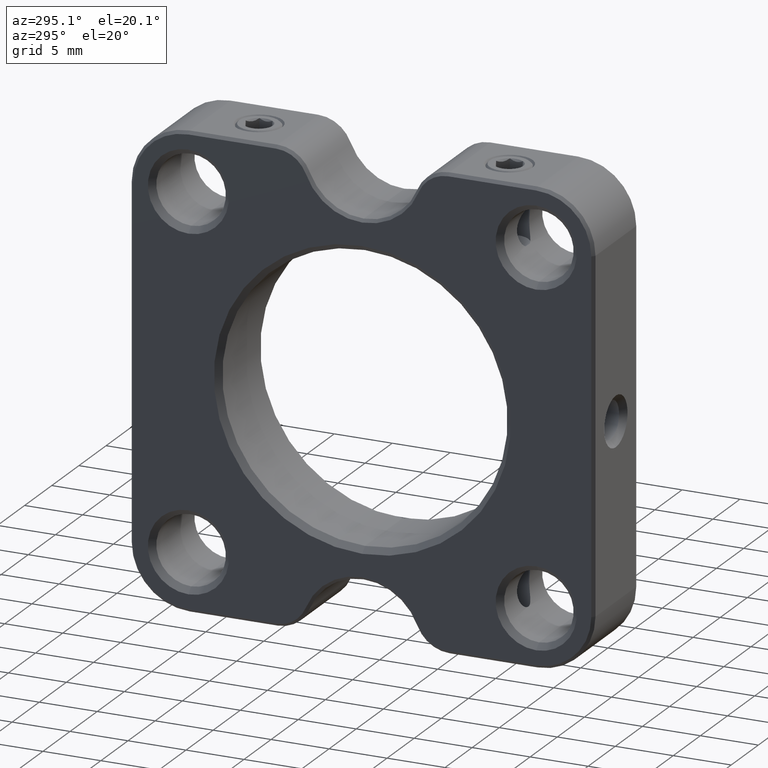
[diagram: clean part render]
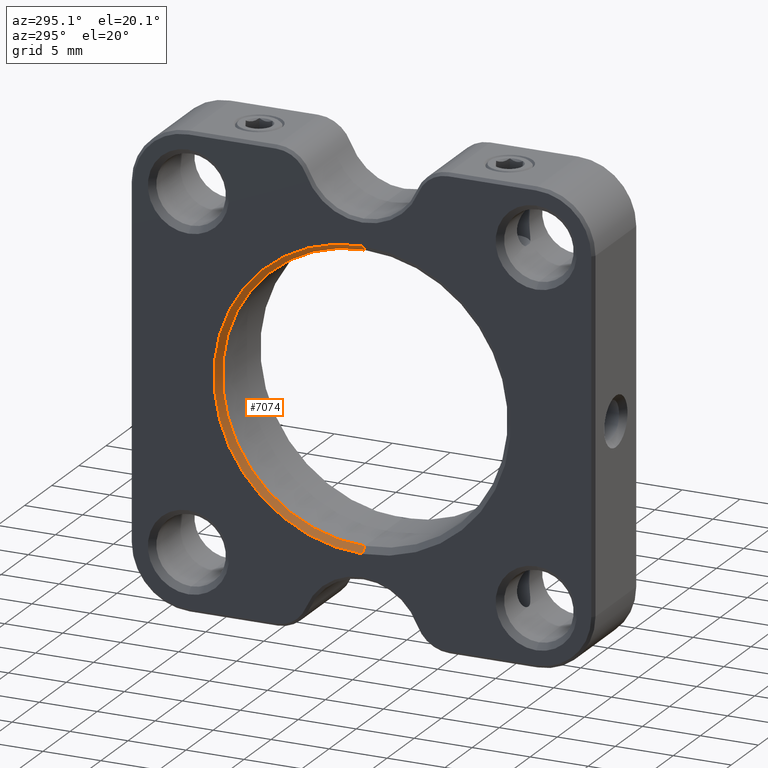
[diagram: same view with one face highlighted and labeled with its STEP entity id]
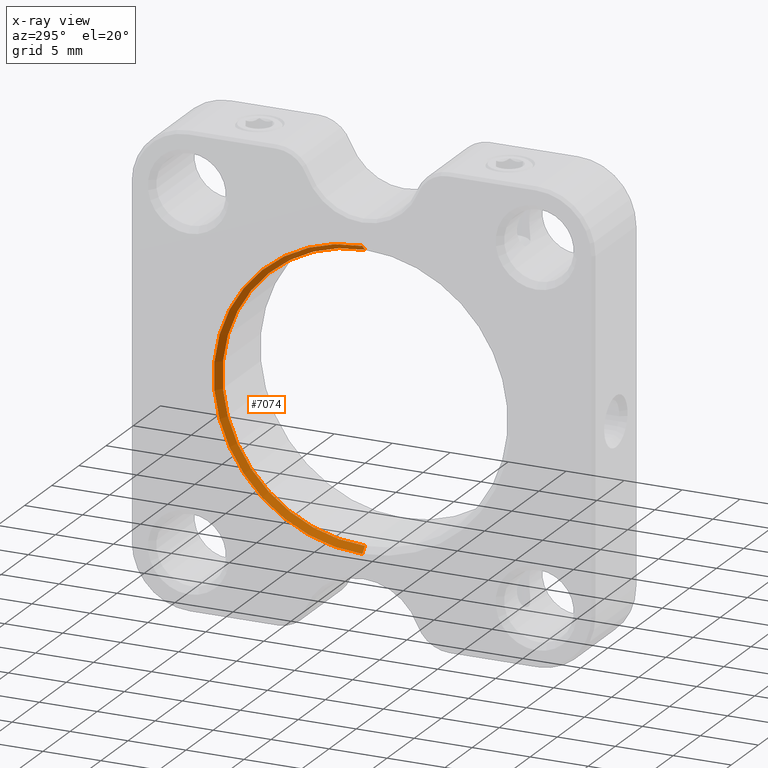
[diagram: x-ray of the same camera — body ghosted, the highlighted face saturated]
A machine part, auxiliary view. The second image highlights one B-rep face of the part: STEP entity #7074.
The next image is the same camera in x-ray: the body ghosted, the highlighted face saturated — about 0% of this face is hidden behind the body in this view.
In plain terms, the highlighted conical surface has half-angle 45 deg.
Its self-contained STEP definition (entity closure, byte-faithful):
#504 = ORIENTED_EDGE ( 'NONE', *, *, #5115, .F. ) ;
#619 = EDGE_LOOP ( 'NONE', ( #504, #4240, #5287, #6853 ) ) ;
#815 = CARTESIAN_POINT ( 'NONE',  ( -18.20960063692995234, 2.109301223409109749, 52.30500000000002103 ) ) ;
#924 = CARTESIAN_POINT ( 'NONE',  ( -18.20960063692995234, 2.109301223409109749, 40.00000000000001421 ) ) ;
#1064 = CARTESIAN_POINT ( 'NONE',  ( -18.70960063692994879, 2.109301223409109749, 52.80500000000002103 ) ) ;
#1221 = DIRECTION ( 'NONE',  ( 0.000000000000000000, 0.000000000000000000, -1.000000000000000000 ) ) ;
#1455 = FACE_OUTER_BOUND ( 'NONE', #619, .T. ) ;
#1683 = CIRCLE ( 'NONE', #4005, 12.30499999999999972 ) ;
#1883 = DIRECTION ( 'NONE',  ( -1.000000000000000000, -0.000000000000000000, -0.000000000000000000 ) ) ;
#2069 = DIRECTION ( 'NONE',  ( -1.000000000000000000, -0.000000000000000000, -0.000000000000000000 ) ) ;
#2199 = CARTESIAN_POINT ( 'NONE',  ( -18.70960063692994879, 2.109301223409111525, 27.19500000000001450 ) ) ;
#2202 = VERTEX_POINT ( 'NONE', #6287 ) ;
#2230 = CIRCLE ( 'NONE', #7140, 12.80499999999999972 ) ;
#3018 = CARTESIAN_POINT ( 'NONE',  ( -18.70960063692994879, 2.109301223409109749, 40.00000000000001421 ) ) ;
#3182 = VERTEX_POINT ( 'NONE', #2199 ) ;
#3286 = CARTESIAN_POINT ( 'NONE',  ( -18.70960063692994879, 2.109301223409111525, 27.19500000000001450 ) ) ;
#3343 = EDGE_CURVE ( 'NONE', #7595, #3733, #1683, .T. ) ;
#3594 = LINE ( 'NONE', #1064, #7245 ) ;
#3631 = DIRECTION ( 'NONE',  ( 0.000000000000000000, 0.000000000000000000, 1.000000000000000000 ) ) ;
#3733 = VERTEX_POINT ( 'NONE', #4983 ) ;
#3950 = EDGE_CURVE ( 'NONE', #7595, #2202, #3594, .T. ) ;
#4005 = AXIS2_PLACEMENT_3D ( 'NONE', #924, #2069, #7600 ) ;
#4240 = ORIENTED_EDGE ( 'NONE', *, *, #3343, .F. ) ;
#4438 = DIRECTION ( 'NONE',  ( -0.7071067811865463515, 8.659560562354950115E-17, -0.7071067811865487940 ) ) ;
#4983 = CARTESIAN_POINT ( 'NONE',  ( -18.20960063692995234, 2.109301223409111525, 27.69500000000001450 ) ) ;
#5115 = EDGE_CURVE ( 'NONE', #3733, #3182, #6136, .T. ) ;
#5287 = ORIENTED_EDGE ( 'NONE', *, *, #3950, .T. ) ;
#5367 = CONICAL_SURFACE ( 'NONE', #6994, 12.80500000000000327, 0.7853981633974500554 ) ;
#5878 = EDGE_CURVE ( 'NONE', #3182, #2202, #2230, .T. ) ;
#5885 = CARTESIAN_POINT ( 'NONE',  ( -18.70960063692994879, 2.109301223409109749, 40.00000000000001421 ) ) ;
#5964 = DIRECTION ( 'NONE',  ( -0.7071067811865463515, 0.000000000000000000, 0.7071067811865487940 ) ) ;
#6136 = LINE ( 'NONE', #3286, #7569 ) ;
#6287 = CARTESIAN_POINT ( 'NONE',  ( -18.70960063692994879, 2.109301223409109749, 52.80500000000002103 ) ) ;
#6853 = ORIENTED_EDGE ( 'NONE', *, *, #5878, .F. ) ;
#6994 = AXIS2_PLACEMENT_3D ( 'NONE', #3018, #1883, #3631 ) ;
#7074 = ADVANCED_FACE ( 'NONE', ( #1455 ), #5367, .F. ) ;
#7140 = AXIS2_PLACEMENT_3D ( 'NONE', #5885, #7857, #1221 ) ;
#7245 = VECTOR ( 'NONE', #5964, 1000.000000000000000 ) ;
#7569 = VECTOR ( 'NONE', #4438, 1000.000000000000000 ) ;
#7595 = VERTEX_POINT ( 'NONE', #815 ) ;
#7600 = DIRECTION ( 'NONE',  ( 0.000000000000000000, 0.000000000000000000, -1.000000000000000000 ) ) ;
#7857 = DIRECTION ( 'NONE',  ( 1.000000000000000000, 0.000000000000000000, 0.000000000000000000 ) ) ;